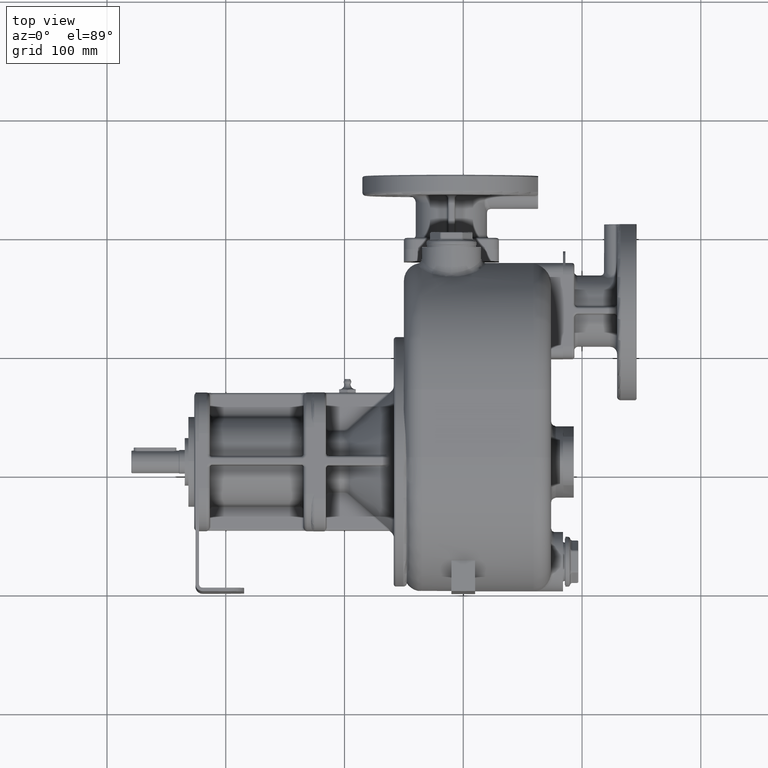
[diagram: clean part render]
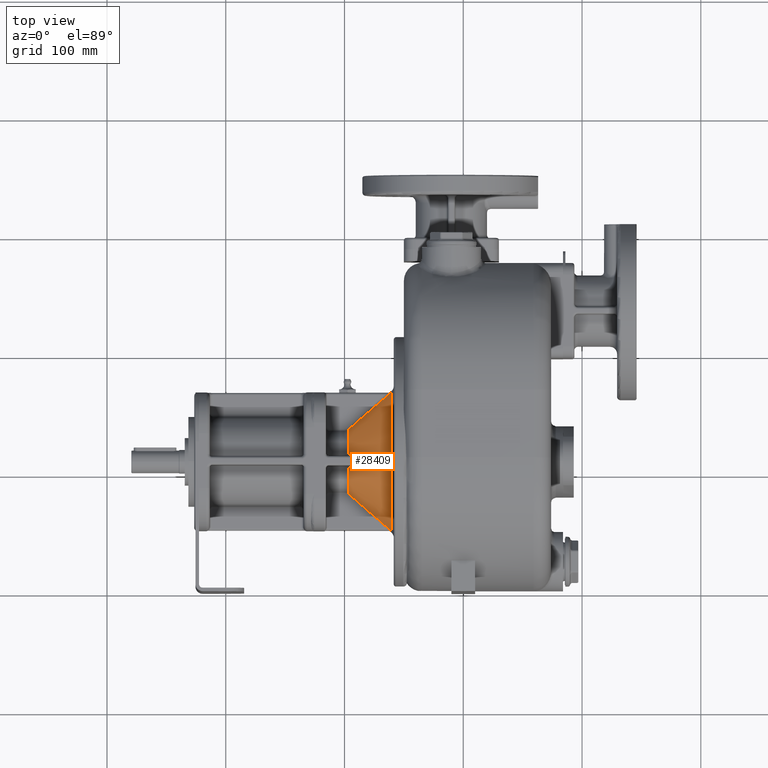
[diagram: same view with one face highlighted and labeled with its STEP entity id]
A machine part, top view. The second image highlights one B-rep face of the part: STEP entity #28409.
In plain terms, the highlighted conical surface has half-angle 40 deg.
Its self-contained STEP definition (entity closure, byte-faithful):
#7694=DIRECTION('',(7.660442050024E-1,-6.427878934627E-1,3.470816919564E-12));
#7695=VECTOR('',#7694,1.473006843776E0);
#7696=CARTESIAN_POINT('',(-6.177166269848E1,5.153208930424E1,
-4.209174529895E-12));
#7697=LINE('',#7696,#7695);
#7703=DIRECTION('',(7.660442053993E-1,6.427878929898E-1,-3.426566255286E-12));
#7704=VECTOR('',#7703,1.473006843776E0);
#7705=CARTESIAN_POINT('',(-6.177166269907E1,1.684679106965E2,
4.142164205678E-12));
#7706=LINE('',#7705,#7704);
#8544=CARTESIAN_POINT('',(-6.615670070720E1,1.041632190064E2,5.447662244532E1));
#8545=CARTESIAN_POINT('',(-6.605596487385E1,1.041629687514E2,5.456160259990E1));
#8546=CARTESIAN_POINT('',(-6.585661195174E1,1.041677110169E2,5.473036608960E1));
#8547=CARTESIAN_POINT('',(-6.556318024783E1,1.041902680673E2,5.498035479103E1));
#8548=CARTESIAN_POINT('',(-6.527730344996E1,1.042274524862E2,5.522547076429E1));
#8549=CARTESIAN_POINT('',(-6.500012186262E1,1.042787040815E2,5.546463117071E1));
#8550=CARTESIAN_POINT('',(-6.473288331561E1,1.043431907229E2,5.569664939220E1));
#8551=CARTESIAN_POINT('',(-6.447661561340E1,1.044197384846E2,5.592048292267E1));
#8552=CARTESIAN_POINT('',(-6.423248078870E1,1.045073354573E2,5.613499597771E1));
#8553=CARTESIAN_POINT('',(-6.400116539531E1,1.046048277625E2,5.633944281932E1));
#8554=CARTESIAN_POINT('',(-6.378276335703E1,1.047109336166E2,5.653357161062E1));
#8555=CARTESIAN_POINT('',(-6.357755796456E1,1.048247219169E2,5.671701128499E1));
#8556=CARTESIAN_POINT('',(-6.338560123394E1,1.049451232231E2,5.688957946562E1));
#8557=CARTESIAN_POINT('',(-6.320655571261E1,1.050709559760E2,5.705142105506E1));
#8558=CARTESIAN_POINT('',(-6.304029143997E1,1.052014985158E2,5.720255494854E1));
#8559=CARTESIAN_POINT('',(-6.288652101803E1,1.053359100652E2,5.734312868081E1));
#8560=CARTESIAN_POINT('',(-6.274464618598E1,1.054732500874E2,5.747355164821E1));
#8561=CARTESIAN_POINT('',(-6.261431088306E1,1.056130171274E2,5.759407165385E1));
#8562=CARTESIAN_POINT('',(-6.249506490692E1,1.057547163363E2,5.770502028596E1));
#8563=CARTESIAN_POINT('',(-6.238624933596E1,1.058977282988E2,5.780690051436E1));
#8564=CARTESIAN_POINT('',(-6.228741698541E1,1.060416820391E2,5.790006005553E1));
#8565=CARTESIAN_POINT('',(-6.219813520485E1,1.061863668314E2,5.798484796853E1));
#8566=CARTESIAN_POINT('',(-6.211785941128E1,1.063314891915E2,5.806170365395E1));
#8567=CARTESIAN_POINT('',(-6.204616352011E1,1.064766813477E2,5.813096494787E1));
#8568=CARTESIAN_POINT('',(-6.198272367383E1,1.066217115777E2,5.819289500184E1));
#8569=CARTESIAN_POINT('',(-6.192715029888E1,1.067664797926E2,5.824782138097E1));
#8570=CARTESIAN_POINT('',(-6.187902169399E1,1.069109875563E2,5.829610438039E1));
#8571=CARTESIAN_POINT('',(-6.183795357672E1,1.070551647336E2,5.833806887883E1));
#8572=CARTESIAN_POINT('',(-6.180366801666E1,1.071992137057E2,5.837396376089E1));
#8573=CARTESIAN_POINT('',(-6.177607059178E1,1.073430930129E2,5.840386966451E1));
#8574=CARTESIAN_POINT('',(-6.175486078990E1,1.074863789764E2,5.842802492547E1));
#8575=CARTESIAN_POINT('',(-6.173986645330E1,1.076291316696E2,5.844658236592E1));
#8576=CARTESIAN_POINT('',(-6.173111752313E1,1.077703318698E2,5.845948514500E1));
#8577=CARTESIAN_POINT('',(-6.172818744113E1,1.079115558415E2,5.846716007901E1));
#8578=CARTESIAN_POINT('',(-6.173006415562E1,1.080046899953E2,5.846879932259E1));
#8579=CARTESIAN_POINT('',(-6.173195015501E1,1.080510006196E2,5.846875921689E1));
#8581=CARTESIAN_POINT('',(-6.173195015501E1,1.080510006196E2,5.846875921689E1));
#8582=CARTESIAN_POINT('',(-6.174524379494E1,1.083772926862E2,5.846847497189E1));
#8583=CARTESIAN_POINT('',(-6.176510585039E1,1.090292187820E2,5.846806641038E1));
#8584=CARTESIAN_POINT('',(-6.177503762473E1,1.100050089272E2,5.846781336301E1));
#8585=CARTESIAN_POINT('',(-6.176469435276E1,1.109827831440E2,5.846816851076E1));
#8586=CARTESIAN_POINT('',(-6.174546013205E1,1.116253919338E2,5.846823732025E1));
#8587=CARTESIAN_POINT('',(-6.173211282453E1,1.119525683151E2,5.846850619344E1));
#8589=CARTESIAN_POINT('',(-6.173211282453E1,1.119525683151E2,5.846850619344E1));
#8590=CARTESIAN_POINT('',(-6.173032701874E1,1.119961215749E2,5.846854621897E1));
#8591=CARTESIAN_POINT('',(-6.172796333134E1,1.120955362102E2,5.846709967457E1));
#8592=CARTESIAN_POINT('',(-6.173136855757E1,1.122336573161E2,5.845911891417E1));
#8593=CARTESIAN_POINT('',(-6.174025229251E1,1.123751640489E2,5.844608468890E1));
#8594=CARTESIAN_POINT('',(-6.175527933486E1,1.125172114372E2,5.842751797360E1));
#8595=CARTESIAN_POINT('',(-6.177659855493E1,1.126599760839E2,5.840328614661E1));
#8596=CARTESIAN_POINT('',(-6.180426524863E1,1.128032906423E2,5.837334140369E1));
#8597=CARTESIAN_POINT('',(-6.183848226837E1,1.129469654317E2,5.833751685901E1));
#8598=CARTESIAN_POINT('',(-6.187956006250E1,1.130908219479E2,5.829555583456E1));
#8599=CARTESIAN_POINT('',(-6.192773710420E1,1.132350780883E2,5.824724159309E1));
#8600=CARTESIAN_POINT('',(-6.198333872866E1,1.133797335337E2,5.819229403048E1));
#8601=CARTESIAN_POINT('',(-6.204674814666E1,1.135246104217E2,5.813039503960E1));
#8602=CARTESIAN_POINT('',(-6.211843558564E1,1.136696681614E2,5.806114600672E1));
#8603=CARTESIAN_POINT('',(-6.219884112835E1,1.138147710725E2,5.798417958108E1));
#8604=CARTESIAN_POINT('',(-6.228831085645E1,1.139596631844E2,5.789921656449E1));
#8605=CARTESIAN_POINT('',(-6.238742730692E1,1.141039936424E2,5.780578773353E1));
#8606=CARTESIAN_POINT('',(-6.249674504099E1,1.142473870506E2,5.770345225899E1));
#8607=CARTESIAN_POINT('',(-6.261659161928E1,1.143894952296E2,5.759196134302E1));
#8608=CARTESIAN_POINT('',(-6.274749014452E1,1.145297116058E2,5.747092492310E1));
#8609=CARTESIAN_POINT('',(-6.289002275290E1,1.146673498513E2,5.733991563572E1));
#8610=CARTESIAN_POINT('',(-6.304449039364E1,1.148019110760E2,5.719873327470E1));
#8611=CARTESIAN_POINT('',(-6.321130482081E1,1.149326065246E2,5.704711343071E1));
#8612=CARTESIAN_POINT('',(-6.339086145605E1,1.150584048991E2,5.688483451538E1));
#8613=CARTESIAN_POINT('',(-6.358327404424E1,1.151785884194E2,5.671189268746E1));
#8614=CARTESIAN_POINT('',(-6.378873520119E1,1.152921860740E2,5.652824661687E1));
#8615=CARTESIAN_POINT('',(-6.400725772643E1,1.153979461461E2,5.633404133070E1));
#8616=CARTESIAN_POINT('',(-6.423854694619E1,1.154949734449E2,5.612965528070E1));
#8617=CARTESIAN_POINT('',(-6.448242477414E1,1.155821753546E2,5.591539294819E1));
#8618=CARTESIAN_POINT('',(-6.473822013404E1,1.156582433875E2,5.569200222508E1));
#8619=CARTESIAN_POINT('',(-6.500478351131E1,1.157222342020E2,5.546060181487E1));
#8620=CARTESIAN_POINT('',(-6.528105289947E1,1.157731324112E2,5.522224603999E1));
#8621=CARTESIAN_POINT('',(-6.556583767592E1,1.158100005123E2,5.497808441828E1));
#8622=CARTESIAN_POINT('',(-6.585801794927E1,1.158323128320E2,5.472917550910E1));
#8623=CARTESIAN_POINT('',(-6.605645100493E1,1.158370246237E2,5.456119633929E1));
#8624=CARTESIAN_POINT('',(-6.615669959682E1,1.158367808594E2,5.447662122035E1));
#8626=CARTESIAN_POINT('',(-6.615669959682E1,1.158367808594E2,5.447662122035E1));
#8627=CARTESIAN_POINT('',(-6.813293958936E1,1.158319751831E2,5.280938280624E1));
#8628=CARTESIAN_POINT('',(-7.186802502656E1,1.158220359194E2,4.965676095884E1));
#8629=CARTESIAN_POINT('',(-7.677361419891E1,1.158065427903E2,4.551169060776E1));
#8630=CARTESIAN_POINT('',(-8.111867894714E1,1.157903923340E2,4.183585195427E1));
#8631=CARTESIAN_POINT('',(-8.497611983365E1,1.157736164911E2,3.856812882675E1));
#8632=CARTESIAN_POINT('',(-8.840509368772E1,1.157562725723E2,3.565899840898E1));
#8633=CARTESIAN_POINT('',(-9.141171604925E1,1.157387152460E2,3.310397970210E1));
#8634=CARTESIAN_POINT('',(-9.406293373072E1,1.157210109679E2,3.084702263221E1));
#8635=CARTESIAN_POINT('',(-9.565908952329E1,1.157088958881E2,2.948563639831E1));
#8636=CARTESIAN_POINT('',(-9.640900226245E1,1.157028517119E2,2.884539967561E1));
#8638=CARTESIAN_POINT('',(-9.640900132538E1,1.1E2,0.E0));
#8639=DIRECTION('',(-1.E0,0.E0,0.E0));
#8640=DIRECTION('',(0.E0,1.939499120428E-1,9.810114329704E-1));
#8641=AXIS2_PLACEMENT_3D('',#8638,#8639,#8640);
#8643=CARTESIAN_POINT('',(-9.640900221945E1,1.371014672470E2,1.140570340390E1));
#8644=CARTESIAN_POINT('',(-9.597702519027E1,1.374918011670E2,1.141266673230E1));
#8645=CARTESIAN_POINT('',(-9.508750780741E1,1.382934269769E2,1.142650606308E1));
#8646=CARTESIAN_POINT('',(-9.369002274332E1,1.395464380919E2,1.144676365801E1));
#8647=CARTESIAN_POINT('',(-9.218788575474E1,1.408868418474E2,1.146701483152E1));
#8648=CARTESIAN_POINT('',(-9.055425326079E1,1.423378628488E2,1.148741716566E1));
#8649=CARTESIAN_POINT('',(-8.875746128826E1,1.439266896051E2,1.150814157777E1));
#8650=CARTESIAN_POINT('',(-8.676967275482E1,1.456767854455E2,1.152919417571E1));
#8651=CARTESIAN_POINT('',(-8.457814541127E1,1.475981990744E2,1.155041800881E1));
#8652=CARTESIAN_POINT('',(-8.213877452657E1,1.497283703291E2,1.157190891099E1));
#8653=CARTESIAN_POINT('',(-7.939067413932E1,1.521188806064E2,1.159378839165E1));
#8654=CARTESIAN_POINT('',(-7.630773181743E1,1.547906974900E2,1.161582170207E1));
#8655=CARTESIAN_POINT('',(-7.291077901951E1,1.577243634361E2,1.163742708760E1));
#8656=CARTESIAN_POINT('',(-6.921783130175E1,1.609035074040E2,1.165848827662E1));
#8657=CARTESIAN_POINT('',(-6.646673158455E1,1.632650220567E2,1.167197559207E1));
#8658=CARTESIAN_POINT('',(-6.502101693674E1,1.645041985187E2,1.167877330986E1));
#8660=CARTESIAN_POINT('',(-6.502101693674E1,1.645041985187E2,1.167877330986E1));
#8661=CARTESIAN_POINT('',(-6.492593057800E1,1.645857001565E2,1.167922077235E1));
#8662=CARTESIAN_POINT('',(-6.472974143873E1,1.647549113532E2,1.167517208636E1));
#8663=CARTESIAN_POINT('',(-6.445222088345E1,1.649975000607E2,1.165393777627E1));
#8664=CARTESIAN_POINT('',(-6.418141319109E1,1.652371800659E2,1.161874340217E1));
#8665=CARTESIAN_POINT('',(-6.392134750513E1,1.654703200456E2,1.157015656749E1));
#8666=CARTESIAN_POINT('',(-6.367219685599E1,1.656965284788E2,1.150907034022E1));
#8667=CARTESIAN_POINT('',(-6.343506179734E1,1.659146030842E2,1.143646104440E1));
#8668=CARTESIAN_POINT('',(-6.321077706157E1,1.661235416589E2,1.135346675876E1));
#8669=CARTESIAN_POINT('',(-6.299990979426E1,1.663225631992E2,1.126130456269E1));
#8670=CARTESIAN_POINT('',(-6.280237703916E1,1.665114867401E2,1.116101822175E1));
#8671=CARTESIAN_POINT('',(-6.261812376137E1,1.666901201583E2,1.105362708242E1));
#8672=CARTESIAN_POINT('',(-6.244697691456E1,1.668583790347E2,1.094016093602E1));
#8673=CARTESIAN_POINT('',(-6.228857616344E1,1.670163735267E2,1.082151646595E1));
#8674=CARTESIAN_POINT('',(-6.214253690914E1,1.671642612980E2,1.069848927977E1));
#8675=CARTESIAN_POINT('',(-6.200837142063E1,1.673022934896E2,1.057188478453E1));
#8676=CARTESIAN_POINT('',(-6.188563840845E1,1.674307262081E2,1.044230327012E1));
#8677=CARTESIAN_POINT('',(-6.177372186031E1,1.675499684728E2,1.031035232068E1));
#8678=CARTESIAN_POINT('',(-6.167213442545E1,1.676603635424E2,1.017642020796E1));
#8679=CARTESIAN_POINT('',(-6.158028780625E1,1.677623426107E2,1.004090031454E1));
#8680=CARTESIAN_POINT('',(-6.149773138075E1,1.678562275684E2,9.904157651614E0));
#8681=CARTESIAN_POINT('',(-6.142400053539E1,1.679423797741E2,9.766410963055E0));
#8682=CARTESIAN_POINT('',(-6.135858177540E1,1.680212132512E2,9.627818466548E0));
#8683=CARTESIAN_POINT('',(-6.130116595982E1,1.680929490910E2,9.488660057198E0));
#8684=CARTESIAN_POINT('',(-6.125141297639E1,1.681578570999E2,9.349089962024E0));
#8685=CARTESIAN_POINT('',(-6.120896403491E1,1.682162108410E2,9.209343854578E0));
#8686=CARTESIAN_POINT('',(-6.117351294191E1,1.682682728739E2,9.069453383860E0));
#8687=CARTESIAN_POINT('',(-6.114482688546E1,1.683142795318E2,8.929210123594E0));
#8688=CARTESIAN_POINT('',(-6.112253564684E1,1.683545564084E2,8.788570068583E0));
#8689=CARTESIAN_POINT('',(-6.110650512704E1,1.683892616851E2,8.647258505164E0));
#8690=CARTESIAN_POINT('',(-6.109680371417E1,1.684183163268E2,8.505427347515E0));
#8691=CARTESIAN_POINT('',(-6.109315234143E1,1.684419142777E2,8.363391791349E0));
#8692=CARTESIAN_POINT('',(-6.109552062905E1,1.684600594527E2,8.221337849380E0));
#8693=CARTESIAN_POINT('',(-6.110391760708E1,1.684727113303E2,8.079542215128E0));
#8694=CARTESIAN_POINT('',(-6.111811820992E1,1.684800840314E2,7.937893741486E0));
#8695=CARTESIAN_POINT('',(-6.113127438410E1,1.684815269813E2,7.844344442842E0));
#8696=CARTESIAN_POINT('',(-6.113888011488E1,1.684813638933E2,7.797285367833E0));
#8698=CARTESIAN_POINT('',(-6.113888011488E1,1.684813638933E2,7.797285367833E0));
#8699=CARTESIAN_POINT('',(-6.119131329696E1,1.684802578900E2,7.472685066543E0));
#8700=CARTESIAN_POINT('',(-6.128997492950E1,1.684781589777E2,6.822191429875E0));
#8701=CARTESIAN_POINT('',(-6.141870721774E1,1.684754499856E2,5.844181077168E0));
#8702=CARTESIAN_POINT('',(-6.152789558459E1,1.684731269556E2,4.864972043651E0));
#8703=CARTESIAN_POINT('',(-6.161723912549E1,1.684712109357E2,3.885973560172E0));
#8704=CARTESIAN_POINT('',(-6.168655586108E1,1.684697366978E2,2.908482017538E0));
#8705=CARTESIAN_POINT('',(-6.173583104316E1,1.684686963307E2,1.933919095842E0));
#8706=CARTESIAN_POINT('',(-6.176520124660E1,1.684680638253E2,
9.634618266447E-1));
#8707=CARTESIAN_POINT('',(-6.177165922538E1,1.684679118547E2,
3.206245965512E-1));
#8708=CARTESIAN_POINT('',(-6.177166269907E1,1.684679106965E2,
4.142164205678E-12));
#8710=CARTESIAN_POINT('',(-6.064327434188E1,1.1E2,0.E0));
#8711=DIRECTION('',(-1.E0,0.E0,0.E0));
#8712=DIRECTION('',(0.E0,-1.E0,0.E0));
#8713=AXIS2_PLACEMENT_3D('',#8710,#8711,#8712);
#8715=CARTESIAN_POINT('',(-6.177166269848E1,5.153208930424E1,
-4.209174529895E-12));
#8716=CARTESIAN_POINT('',(-6.177165899453E1,5.153208806877E1,
3.205233534961E-1));
#8717=CARTESIAN_POINT('',(-6.176520492628E1,5.153193583826E1,
9.632036383883E-1));
#8718=CARTESIAN_POINT('',(-6.173584475725E1,5.153130387887E1,1.933573540932E0));
#8719=CARTESIAN_POINT('',(-6.168657574100E1,5.153026377906E1,2.908162135381E0));
#8720=CARTESIAN_POINT('',(-6.161725789812E1,5.152878955394E1,3.885759534477E0));
#8721=CARTESIAN_POINT('',(-6.152789768488E1,5.152687205432E1,4.864941533651E0));
#8722=CARTESIAN_POINT('',(-6.141870042996E1,5.152455092131E1,5.844280017559E0));
#8723=CARTESIAN_POINT('',(-6.128988624600E1,5.152183147534E1,6.822716713476E0));
#8724=CARTESIAN_POINT('',(-6.119133406832E1,5.151975800769E1,7.472724785947E0));
#8725=CARTESIAN_POINT('',(-6.113885290179E1,5.151865243777E1,7.797611872410E0));
#8727=CARTESIAN_POINT('',(-6.113885290179E1,5.151865243777E1,7.797611872410E0));
#8728=CARTESIAN_POINT('',(-6.113125939493E1,5.151848796924E1,7.844566052401E0));
#8729=CARTESIAN_POINT('',(-6.111793719401E1,5.151990659665E1,7.938951331673E0));
#8730=CARTESIAN_POINT('',(-6.110382274756E1,5.152736525345E1,8.080679996093E0));
#8731=CARTESIAN_POINT('',(-6.109549838420E1,5.154012539672E1,8.222787597767E0));
#8732=CARTESIAN_POINT('',(-6.109311642212E1,5.155828710431E1,8.365012449331E0));
#8733=CARTESIAN_POINT('',(-6.109688537603E1,5.158200814738E1,8.507180911666E0));
#8734=CARTESIAN_POINT('',(-6.110670582305E1,5.161118253935E1,8.649108976208E0));
#8735=CARTESIAN_POINT('',(-6.112276334182E1,5.164593251469E1,8.790533872186E0));
#8736=CARTESIAN_POINT('',(-6.114519279932E1,5.168634211220E1,8.931241586818E0));
#8737=CARTESIAN_POINT('',(-6.117402429426E1,5.173249206156E1,9.071578543971E0));
#8738=CARTESIAN_POINT('',(-6.120958116077E1,5.178467382155E1,9.211622561955E0));
#8739=CARTESIAN_POINT('',(-6.125220499445E1,5.184319724623E1,9.351461721086E0));
#8740=CARTESIAN_POINT('',(-6.130213676595E1,5.190827799851E1,9.491119666860E0));
#8741=CARTESIAN_POINT('',(-6.135968610497E1,5.198014607889E1,9.630349346512E0));
#8742=CARTESIAN_POINT('',(-6.142520027342E1,5.205905130084E1,9.768843377783E0));
#8743=CARTESIAN_POINT('',(-6.149904168517E1,5.214527426054E1,9.906413464442E0));
#8744=CARTESIAN_POINT('',(-6.158161706843E1,5.223915012918E1,1.004297364278E1));
#8745=CARTESIAN_POINT('',(-6.167340203019E1,5.234104218701E1,1.017826377794E1));
#8746=CARTESIAN_POINT('',(-6.177499374072E1,5.245139598834E1,1.031191510464E1));
#8747=CARTESIAN_POINT('',(-6.188684188201E1,5.257054483600E1,1.044364768954E1));
#8748=CARTESIAN_POINT('',(-6.200949193308E1,5.269887359306E1,1.057302728480E1));
#8749=CARTESIAN_POINT('',(-6.214360395383E1,5.283682495431E1,1.069942530446E1));
#8750=CARTESIAN_POINT('',(-6.228955737748E1,5.298461390338E1,1.082230275955E1));
#8751=CARTESIAN_POINT('',(-6.244786056256E1,5.314249312548E1,1.094076865614E1));
#8752=CARTESIAN_POINT('',(-6.261884062513E1,5.331058175137E1,1.105408289998E1));
#8753=CARTESIAN_POINT('',(-6.280286206573E1,5.348897621607E1,1.116126081699E1));
#8754=CARTESIAN_POINT('',(-6.300008792677E1,5.367760719138E1,1.126139361718E1));
#8755=CARTESIAN_POINT('',(-6.321066956972E1,5.387635581683E1,1.135341425083E1));
#8756=CARTESIAN_POINT('',(-6.343471417221E1,5.408507384376E1,1.143633688311E1));
#8757=CARTESIAN_POINT('',(-6.367167049957E1,5.430299102255E1,1.150892747276E1));
#8758=CARTESIAN_POINT('',(-6.392075779590E1,5.452914830142E1,1.157003123621E1));
#8759=CARTESIAN_POINT('',(-6.418099101168E1,5.476244278874E1,1.161867153352E1));
#8760=CARTESIAN_POINT('',(-6.445195284759E1,5.500227047642E1,1.165394060402E1));
#8761=CARTESIAN_POINT('',(-6.473072538112E1,5.524593523925E1,1.167518242811E1));
#8762=CARTESIAN_POINT('',(-6.492582028792E1,5.541422064334E1,1.167929508152E1));
#8763=CARTESIAN_POINT('',(-6.502191649268E1,5.549658875460E1,1.167884351052E1));
#8765=CARTESIAN_POINT('',(-6.502191649268E1,5.549658875460E1,1.167884351052E1));
#8766=CARTESIAN_POINT('',(-6.645117227362E1,5.672165949178E1,1.167212256099E1));
#8767=CARTESIAN_POINT('',(-6.917622552960E1,5.906074919350E1,1.165866870234E1));
#8768=CARTESIAN_POINT('',(-7.284265430014E1,6.221693241676E1,1.163783781314E1));
#8769=CARTESIAN_POINT('',(-7.621670387428E1,6.513057523446E1,1.161642829700E1));
#8770=CARTESIAN_POINT('',(-7.930727384395E1,6.780869760118E1,1.159442143297E1));
#8771=CARTESIAN_POINT('',(-8.208019310908E1,7.022055660573E1,1.157240342710E1));
#8772=CARTESIAN_POINT('',(-8.453610827089E1,7.236500810893E1,1.155080977738E1));
#8773=CARTESIAN_POINT('',(-8.674202342249E1,7.429891033637E1,1.152947753203E1));
#8774=CARTESIAN_POINT('',(-8.873989529222E1,7.605780451479E1,1.150833724325E1));
#8775=CARTESIAN_POINT('',(-9.054127405393E1,7.765063227902E1,1.148757415452E1));
#8776=CARTESIAN_POINT('',(-9.217742755353E1,7.910384650532E1,1.146715209303E1));
#8777=CARTESIAN_POINT('',(-9.368134759664E1,8.044579909561E1,1.144688120106E1));
#8778=CARTESIAN_POINT('',(-9.508144072199E1,8.170111351711E1,1.142659728250E1));
#8779=CARTESIAN_POINT('',(-9.597474993304E1,8.250614281067E1,1.141270343446E1));
#8780=CARTESIAN_POINT('',(-9.640900221988E1,8.289853275254E1,1.140570340410E1));
#8782=CARTESIAN_POINT('',(-9.640900132538E1,1.1E2,0.E0));
#8783=DIRECTION('',(-1.E0,0.E0,0.E0));
#8784=DIRECTION('',(0.E0,-9.217015387176E-1,3.878998240856E-1));
#8785=AXIS2_PLACEMENT_3D('',#8782,#8783,#8784);
#8787=CARTESIAN_POINT('',(-9.640900226244E1,1.042971482881E2,2.884539967560E1));
#8788=CARTESIAN_POINT('',(-9.566098564268E1,1.042911194E2,2.948401754851E1));
#8789=CARTESIAN_POINT('',(-9.406772807293E1,1.042790234207E2,3.084293559774E1));
#8790=CARTESIAN_POINT('',(-9.141880588564E1,1.042613291735E2,3.309795007160E1));
#8791=CARTESIAN_POINT('',(-8.841047940532E1,1.042437560439E2,3.565442627600E1));
#8792=CARTESIAN_POINT('',(-8.498126990316E1,1.042264072975E2,3.856376351467E1));
#8793=CARTESIAN_POINT('',(-8.112183460445E1,1.042096199192E2,4.183318126313E1));
#8794=CARTESIAN_POINT('',(-7.677590025797E1,1.041934647553E2,4.550975855364E1));
#8795=CARTESIAN_POINT('',(-7.186868845469E1,1.041779657992E2,4.965620010027E1));
#8796=CARTESIAN_POINT('',(-6.813312295645E1,1.041680251300E2,5.280923035958E1));
#8797=CARTESIAN_POINT('',(-6.615670070720E1,1.041632190064E2,5.447662244532E1));
#8867=CARTESIAN_POINT('',(-9.640900221988E1,8.289853275254E1,1.140570340410E1));
#11691=CARTESIAN_POINT('',(-9.640900226245E1,1.157028517119E2,
2.884539967561E1));
#13983=CARTESIAN_POINT('',(-6.064327434188E1,5.058525833808E1,
2.706531545518E-14));
#13984=CARTESIAN_POINT('',(-6.064327434188E1,1.694147416619E2,
-1.978906038180E-14));
#13985=VERTEX_POINT('',#13983);
#13986=VERTEX_POINT('',#13984);
#14051=VERTEX_POINT('',#8643);
#14052=VERTEX_POINT('',#8658);
#14088=VERTEX_POINT('',#11691);
#14090=VERTEX_POINT('',#8626);
#14091=VERTEX_POINT('',#8787);
#14092=VERTEX_POINT('',#8797);
#14128=VERTEX_POINT('',#8867);
#14130=VERTEX_POINT('',#8765);
#14222=CARTESIAN_POINT('',(-6.113886461156E1,5.151864609681E1,
7.797509117679E0));
#14223=VERTEX_POINT('',#14222);
#14224=CARTESIAN_POINT('',(-6.173194895038E1,1.080510413093E2,
5.846876156694E1));
#14225=VERTEX_POINT('',#14224);
#14226=CARTESIAN_POINT('',(-6.173195171175E1,1.119489558907E2,
5.846876470659E1));
#14227=VERTEX_POINT('',#14226);
#14230=CARTESIAN_POINT('',(-6.113885640158E1,1.684813507830E2,
7.797513857899E0));
#14231=VERTEX_POINT('',#14230);
#14233=VERTEX_POINT('',#8708);
#14234=VERTEX_POINT('',#8715);
#28374=CARTESIAN_POINT('',(-7.852613783363E1,1.1E2,0.E0));
#28375=DIRECTION('',(1.E0,0.E0,0.E0));
#28376=DIRECTION('',(0.E0,-1.E0,0.E0));
#28377=AXIS2_PLACEMENT_3D('',#28374,#28375,#28376);
#28378=CONICAL_SURFACE('',#28377,4.440923750161E1,4.E1);
#28380=ORIENTED_EDGE('',*,*,#28379,.T.);
#28382=ORIENTED_EDGE('',*,*,#28381,.T.);
#28384=ORIENTED_EDGE('',*,*,#28383,.T.);
#28386=ORIENTED_EDGE('',*,*,#28385,.T.);
#28388=ORIENTED_EDGE('',*,*,#28387,.T.);
#28390=ORIENTED_EDGE('',*,*,#28389,.T.);
#28391=ORIENTED_EDGE('',*,*,#28364,.T.);
#28393=ORIENTED_EDGE('',*,*,#28392,.T.);
#28394=ORIENTED_EDGE('',*,*,#27276,.T.);
#28395=ORIENTED_EDGE('',*,*,#27232,.F.);
#28396=ORIENTED_EDGE('',*,*,#27273,.F.);
#28398=ORIENTED_EDGE('',*,*,#28397,.T.);
#28400=ORIENTED_EDGE('',*,*,#28399,.T.);
#28402=ORIENTED_EDGE('',*,*,#28401,.T.);
#28404=ORIENTED_EDGE('',*,*,#28403,.T.);
#28406=ORIENTED_EDGE('',*,*,#28405,.T.);
#28407=EDGE_LOOP('',(#28380,#28382,#28384,#28386,#28388,#28390,#28391,#28393,
#28394,#28395,#28396,#28398,#28400,#28402,#28404,#28406));
#28408=FACE_OUTER_BOUND('',#28407,.F.);
#28409=ADVANCED_FACE('',(#28408),#28378,.T.);
#8580=B_SPLINE_CURVE_WITH_KNOTS('',3,(#8544,#8545,#8546,#8547,#8548,#8549,#8550,
#8551,#8552,#8553,#8554,#8555,#8556,#8557,#8558,#8559,#8560,#8561,#8562,#8563,
#8564,#8565,#8566,#8567,#8568,#8569,#8570,#8571,#8572,#8573,#8574,#8575,#8576,
#8577,#8578,#8579),.UNSPECIFIED.,.F.,.F.,(4,1,1,1,1,1,1,1,1,1,1,1,1,1,1,1,1,1,1,
1,1,1,1,1,1,1,1,1,1,1,1,1,1,4),(0.E0,3.030303030303E-2,6.060606060606E-2,
9.090909090909E-2,1.212121212121E-1,1.515151515152E-1,1.818181818182E-1,
2.121212121212E-1,2.424242424242E-1,2.727272727273E-1,3.030303030303E-1,
3.333333333333E-1,3.636363636364E-1,3.939393939394E-1,4.242424242424E-1,
4.545454545455E-1,4.848484848485E-1,5.151515151515E-1,5.454545454545E-1,
5.757575757576E-1,6.060606060606E-1,6.363636363636E-1,6.666666666667E-1,
6.969696969697E-1,7.272727272727E-1,7.575757575758E-1,7.878787878788E-1,
8.181818181818E-1,8.484848484848E-1,8.787878787879E-1,9.090909090909E-1,
9.393939393939E-1,9.696969696970E-1,1.E0),.UNSPECIFIED.);
#8588=B_SPLINE_CURVE_WITH_KNOTS('',3,(#8581,#8582,#8583,#8584,#8585,#8586,
#8587),.UNSPECIFIED.,.F.,.F.,(4,1,1,1,4),(0.E0,2.5E-1,5.E-1,7.5E-1,1.E0),
.UNSPECIFIED.);
#8625=B_SPLINE_CURVE_WITH_KNOTS('',3,(#8589,#8590,#8591,#8592,#8593,#8594,#8595,
#8596,#8597,#8598,#8599,#8600,#8601,#8602,#8603,#8604,#8605,#8606,#8607,#8608,
#8609,#8610,#8611,#8612,#8613,#8614,#8615,#8616,#8617,#8618,#8619,#8620,#8621,
#8622,#8623,#8624),.UNSPECIFIED.,.F.,.F.,(4,1,1,1,1,1,1,1,1,1,1,1,1,1,1,1,1,1,1,
1,1,1,1,1,1,1,1,1,1,1,1,1,1,4),(0.E0,3.030303030303E-2,6.060606060606E-2,
9.090909090909E-2,1.212121212121E-1,1.515151515152E-1,1.818181818182E-1,
2.121212121212E-1,2.424242424242E-1,2.727272727273E-1,3.030303030303E-1,
3.333333333333E-1,3.636363636364E-1,3.939393939394E-1,4.242424242424E-1,
4.545454545455E-1,4.848484848485E-1,5.151515151515E-1,5.454545454545E-1,
5.757575757576E-1,6.060606060606E-1,6.363636363636E-1,6.666666666667E-1,
6.969696969697E-1,7.272727272727E-1,7.575757575758E-1,7.878787878788E-1,
8.181818181818E-1,8.484848484848E-1,8.787878787879E-1,9.090909090909E-1,
9.393939393939E-1,9.696969696970E-1,1.E0),.UNSPECIFIED.);
#8637=B_SPLINE_CURVE_WITH_KNOTS('',3,(#8626,#8627,#8628,#8629,#8630,#8631,#8632,
#8633,#8634,#8635,#8636),.UNSPECIFIED.,.F.,.F.,(4,1,1,1,1,1,1,1,4),(0.E0,
1.25E-1,2.5E-1,3.75E-1,5.E-1,6.25E-1,7.5E-1,8.75E-1,1.E0),.UNSPECIFIED.);
#8642=CIRCLE('',#8641,2.940373334129E1);
#8659=B_SPLINE_CURVE_WITH_KNOTS('',3,(#8643,#8644,#8645,#8646,#8647,#8648,#8649,
#8650,#8651,#8652,#8653,#8654,#8655,#8656,#8657,#8658),.UNSPECIFIED.,.F.,.F.,(4,
1,1,1,1,1,1,1,1,1,1,1,1,4),(0.E0,7.692307692308E-2,1.538461538462E-1,
2.307692307692E-1,3.076923076923E-1,3.846153846154E-1,4.615384615385E-1,
5.384615384615E-1,6.153846153846E-1,6.923076923077E-1,7.692307692308E-1,
8.461538461538E-1,9.230769230769E-1,1.E0),.UNSPECIFIED.);
#8697=B_SPLINE_CURVE_WITH_KNOTS('',3,(#8660,#8661,#8662,#8663,#8664,#8665,#8666,
#8667,#8668,#8669,#8670,#8671,#8672,#8673,#8674,#8675,#8676,#8677,#8678,#8679,
#8680,#8681,#8682,#8683,#8684,#8685,#8686,#8687,#8688,#8689,#8690,#8691,#8692,
#8693,#8694,#8695,#8696),.UNSPECIFIED.,.F.,.F.,(4,1,1,1,1,1,1,1,1,1,1,1,1,1,1,1,
1,1,1,1,1,1,1,1,1,1,1,1,1,1,1,1,1,1,4),(0.E0,2.941176470588E-2,
5.882352941176E-2,8.823529411765E-2,1.176470588235E-1,1.470588235294E-1,
1.764705882353E-1,2.058823529412E-1,2.352941176471E-1,2.647058823529E-1,
2.941176470588E-1,3.235294117647E-1,3.529411764706E-1,3.823529411765E-1,
4.117647058824E-1,4.411764705882E-1,4.705882352941E-1,5.E-1,5.294117647059E-1,
5.588235294118E-1,5.882352941176E-1,6.176470588235E-1,6.470588235294E-1,
6.764705882353E-1,7.058823529412E-1,7.352941176471E-1,7.647058823529E-1,
7.941176470588E-1,8.235294117647E-1,8.529411764706E-1,8.823529411765E-1,
9.117647058824E-1,9.411764705882E-1,9.705882352941E-1,1.E0),.UNSPECIFIED.);
#8709=B_SPLINE_CURVE_WITH_KNOTS('',3,(#8698,#8699,#8700,#8701,#8702,#8703,#8704,
#8705,#8706,#8707,#8708),.UNSPECIFIED.,.F.,.F.,(4,1,1,1,1,1,1,1,4),(0.E0,
1.25E-1,2.5E-1,3.75E-1,5.E-1,6.25E-1,7.5E-1,8.75E-1,1.E0),.UNSPECIFIED.);
#8714=CIRCLE('',#8713,5.941474166192E1);
#8726=B_SPLINE_CURVE_WITH_KNOTS('',3,(#8715,#8716,#8717,#8718,#8719,#8720,#8721,
#8722,#8723,#8724,#8725),.UNSPECIFIED.,.F.,.F.,(4,1,1,1,1,1,1,1,4),(0.E0,
1.25E-1,2.5E-1,3.75E-1,5.E-1,6.25E-1,7.5E-1,8.75E-1,1.E0),.UNSPECIFIED.);
#8764=B_SPLINE_CURVE_WITH_KNOTS('',3,(#8727,#8728,#8729,#8730,#8731,#8732,#8733,
#8734,#8735,#8736,#8737,#8738,#8739,#8740,#8741,#8742,#8743,#8744,#8745,#8746,
#8747,#8748,#8749,#8750,#8751,#8752,#8753,#8754,#8755,#8756,#8757,#8758,#8759,
#8760,#8761,#8762,#8763),.UNSPECIFIED.,.F.,.F.,(4,1,1,1,1,1,1,1,1,1,1,1,1,1,1,1,
1,1,1,1,1,1,1,1,1,1,1,1,1,1,1,1,1,1,4),(0.E0,2.941176470588E-2,
5.882352941176E-2,8.823529411765E-2,1.176470588235E-1,1.470588235294E-1,
1.764705882353E-1,2.058823529412E-1,2.352941176471E-1,2.647058823529E-1,
2.941176470588E-1,3.235294117647E-1,3.529411764706E-1,3.823529411765E-1,
4.117647058824E-1,4.411764705882E-1,4.705882352941E-1,5.E-1,5.294117647059E-1,
5.588235294118E-1,5.882352941176E-1,6.176470588235E-1,6.470588235294E-1,
6.764705882353E-1,7.058823529412E-1,7.352941176471E-1,7.647058823529E-1,
7.941176470588E-1,8.235294117647E-1,8.529411764706E-1,8.823529411765E-1,
9.117647058824E-1,9.411764705882E-1,9.705882352941E-1,1.E0),.UNSPECIFIED.);
#8781=B_SPLINE_CURVE_WITH_KNOTS('',3,(#8765,#8766,#8767,#8768,#8769,#8770,#8771,
#8772,#8773,#8774,#8775,#8776,#8777,#8778,#8779,#8780),.UNSPECIFIED.,.F.,.F.,(4,
1,1,1,1,1,1,1,1,1,1,1,1,4),(0.E0,7.692307692308E-2,1.538461538462E-1,
2.307692307692E-1,3.076923076923E-1,3.846153846154E-1,4.615384615385E-1,
5.384615384615E-1,6.153846153846E-1,6.923076923077E-1,7.692307692308E-1,
8.461538461538E-1,9.230769230769E-1,1.E0),.UNSPECIFIED.);
#8786=CIRCLE('',#8785,2.940373334129E1);
#8798=B_SPLINE_CURVE_WITH_KNOTS('',3,(#8787,#8788,#8789,#8790,#8791,#8792,#8793,
#8794,#8795,#8796,#8797),.UNSPECIFIED.,.F.,.F.,(4,1,1,1,1,1,1,1,4),(0.E0,
1.25E-1,2.5E-1,3.75E-1,5.E-1,6.25E-1,7.5E-1,8.75E-1,1.E0),.UNSPECIFIED.);
#27232=EDGE_CURVE('',#13985,#13986,#8714,.T.);
#27273=EDGE_CURVE('',#14234,#13985,#7697,.T.);
#27276=EDGE_CURVE('',#14233,#13986,#7706,.T.);
#28364=EDGE_CURVE('',#14052,#14231,#8697,.T.);
#28379=EDGE_CURVE('',#14092,#14225,#8580,.T.);
#28381=EDGE_CURVE('',#14225,#14227,#8588,.T.);
#28383=EDGE_CURVE('',#14227,#14090,#8625,.T.);
#28385=EDGE_CURVE('',#14090,#14088,#8637,.T.);
#28387=EDGE_CURVE('',#14088,#14051,#8642,.T.);
#28389=EDGE_CURVE('',#14051,#14052,#8659,.T.);
#28392=EDGE_CURVE('',#14231,#14233,#8709,.T.);
#28397=EDGE_CURVE('',#14234,#14223,#8726,.T.);
#28399=EDGE_CURVE('',#14223,#14130,#8764,.T.);
#28401=EDGE_CURVE('',#14130,#14128,#8781,.T.);
#28403=EDGE_CURVE('',#14128,#14091,#8786,.T.);
#28405=EDGE_CURVE('',#14091,#14092,#8798,.T.);